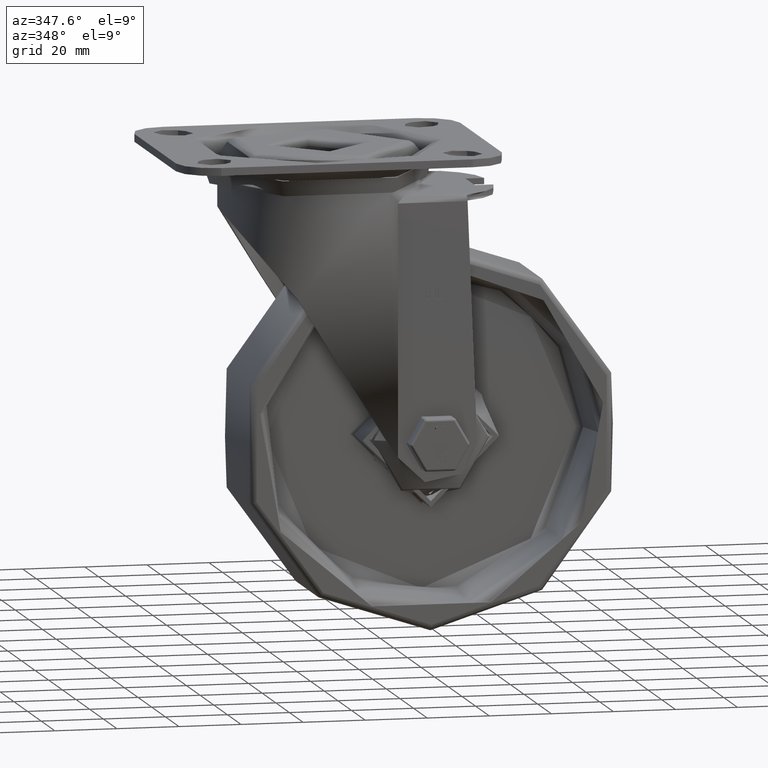
[diagram: clean part render]
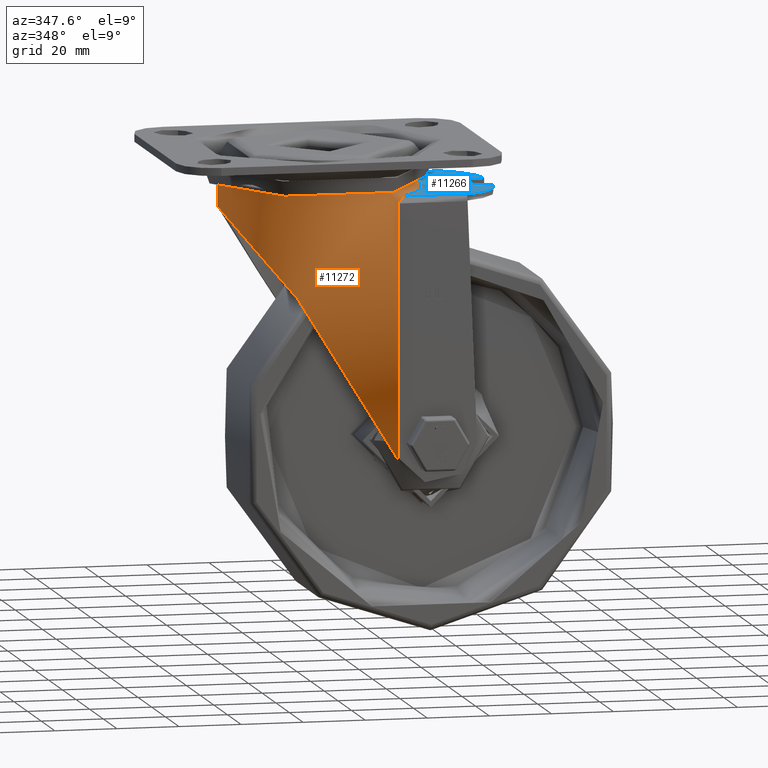
[diagram: same view with the hole feature highlighted: cylindrical wall and planar end face, labeled with their STEP entity ids]
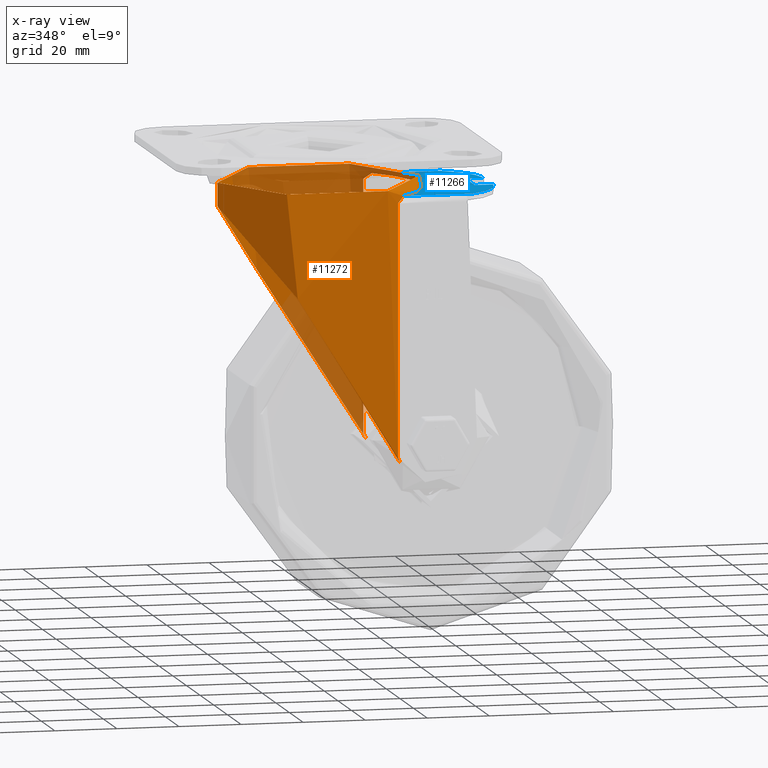
[diagram: x-ray of the same camera — body ghosted, the hole faces saturated]
A machine part, auxiliary view. The highlighted faces form one hole feature of diameter 65 mm: the cylindrical wall (entity #11272, orange) and its adjacent planar end face (entity #11266, blue) — they share a circular edge in the B-rep.
The next image is the same camera in x-ray (body ghosted, the hole faces saturated) — the bore reads through the body.
Wall:
#375=B_SPLINE_CURVE_WITH_KNOTS('',3,(#16042,#16043,#16044,#16045,#16046,
#16047,#16048,#16049,#16050,#16051,#16052,#16053),.UNSPECIFIED.,.F.,.F.,
(4,2,2,2,2,4),(0.363292483379939,0.479567659147119,0.595842834914299,0.671322742740088,
0.709062696652983,0.746802650565877),.UNSPECIFIED.);
#378=B_SPLINE_CURVE_WITH_KNOTS('',3,(#16103,#16104,#16105,#16106,#16107,
#16108,#16109,#16110,#16111,#16112,#16113,#16114),.UNSPECIFIED.,.F.,.F.,
(4,2,2,2,2,4),(0.,0.0377399539128948,0.0754799078257895,0.150959815651579,
0.267234991418759,0.383510167185939),.UNSPECIFIED.);
#379=B_SPLINE_CURVE_WITH_KNOTS('',3,(#16141,#16142,#16143,#16144,#16145,
#16146),.UNSPECIFIED.,.F.,.F.,(4,2,4),(-11.5635386951613,-11.4384785033552,
-11.355064711104),.UNSPECIFIED.);
#380=B_SPLINE_CURVE_WITH_KNOTS('',3,(#16148,#16149,#16150,#16151,#16152,
#16153,#16154,#16155,#16156,#16157,#16158,#16159,#16160,#16161,#16162,#16163,
#16164,#16165,#16166,#16167,#16168,#16169,#16170,#16171,#16172,#16173,#16174,
#16175,#16176,#16177,#16178,#16179,#16180,#16181,#16182,#16183,#16184,#16185,
#16186,#16187,#16188,#16189),.UNSPECIFIED.,.F.,.F.,(4,2,2,2,2,2,2,2,2,2,
2,2,2,2,2,2,2,2,2,2,4),(-22.9776335659443,-22.6910063540771,-20.9212503376627,
-19.1514943212483,-17.381738304834,-15.7584624783314,-14.1351866518288,
-13.658985285183,-13.1827839185373,-12.7065825518915,-12.2303811852457,
-11.7541798186,-11.2779784519542,-10.8017770853084,-10.3255757186626,-8.70229989216005,
-7.07902406565746,-5.30926804924309,-3.53951203282873,-1.76975601641436,
-1.48312880454712),.UNSPECIFIED.);
#381=B_SPLINE_CURVE_WITH_KNOTS('',3,(#16191,#16192,#16193,#16194),
 .UNSPECIFIED.,.F.,.F.,(4,4),(-10.45161608739,-10.2425703451283),
 .UNSPECIFIED.);
#1458=FACE_OUTER_BOUND('',#2173,.T.);
#2173=EDGE_LOOP('',(#7918,#7919,#7920,#7921,#7922,#7923,#7924,#7925,#7926,
#7927,#7928,#7929));
#3024=LINE('',#16136,#3766);
#3025=LINE('',#16139,#3767);
#3026=LINE('',#16195,#3768);
#3766=VECTOR('',#13383,32.5);
#3767=VECTOR('',#13386,10.);
#3768=VECTOR('',#13387,10.);
#4483=CIRCLE('',#12189,32.5);
#4484=CIRCLE('',#12190,32.5);
#4487=CIRCLE('',#12201,32.5);
#4931=VERTEX_POINT('',#16039);
#4932=VERTEX_POINT('',#16041);
#4941=VERTEX_POINT('',#16081);
#4942=VERTEX_POINT('',#16083);
#4948=VERTEX_POINT('',#16102);
#4954=VERTEX_POINT('',#16135);
#4955=VERTEX_POINT('',#16138);
#4956=VERTEX_POINT('',#16140);
#4957=VERTEX_POINT('',#16147);
#4958=VERTEX_POINT('',#16190);
#6081=EDGE_CURVE('',#4931,#4932,#375,.F.);
#6093=EDGE_CURVE('',#4941,#4932,#4483,.T.);
#6094=EDGE_CURVE('',#4942,#4941,#4484,.T.);
#6101=EDGE_CURVE('',#4942,#4948,#378,.F.);
#6112=EDGE_CURVE('',#4941,#4954,#3024,.T.);
#6113=EDGE_CURVE('',#4954,#4954,#4487,.T.);
#6114=EDGE_CURVE('',#4931,#4955,#3025,.T.);
#6115=EDGE_CURVE('',#4955,#4956,#379,.F.);
#6116=EDGE_CURVE('',#4956,#4957,#380,.T.);
#6117=EDGE_CURVE('',#4957,#4958,#381,.F.);
#6118=EDGE_CURVE('',#4958,#4948,#3026,.T.);
#7918=ORIENTED_EDGE('',*,*,#6094,.T.);
#7919=ORIENTED_EDGE('',*,*,#6112,.T.);
#7920=ORIENTED_EDGE('',*,*,#6113,.F.);
#7921=ORIENTED_EDGE('',*,*,#6112,.F.);
#7922=ORIENTED_EDGE('',*,*,#6093,.T.);
#7923=ORIENTED_EDGE('',*,*,#6081,.F.);
#7924=ORIENTED_EDGE('',*,*,#6114,.T.);
#7925=ORIENTED_EDGE('',*,*,#6115,.T.);
#7926=ORIENTED_EDGE('',*,*,#6116,.T.);
#7927=ORIENTED_EDGE('',*,*,#6117,.T.);
#7928=ORIENTED_EDGE('',*,*,#6118,.T.);
#7929=ORIENTED_EDGE('',*,*,#6101,.F.);
#11076=CYLINDRICAL_SURFACE('',#12200,32.5);
#11272=ADVANCED_FACE('',(#1458),#11076,.T.);
#12189=AXIS2_PLACEMENT_3D('',#16082,#13348,#13349);
#12190=AXIS2_PLACEMENT_3D('',#16084,#13350,#13351);
#12200=AXIS2_PLACEMENT_3D('',#16134,#13381,#13382);
#12201=AXIS2_PLACEMENT_3D('',#16137,#13384,#13385);
#13348=DIRECTION('center_axis',(0.,0.,1.));
#13349=DIRECTION('ref_axis',(-1.,0.,0.));
#13350=DIRECTION('center_axis',(0.,0.,1.));
#13351=DIRECTION('ref_axis',(-1.,0.,0.));
#13381=DIRECTION('center_axis',(6.19544098563145E-17,0.,-1.));
#13382=DIRECTION('ref_axis',(-1.,0.,-6.19544098563145E-17));
#13383=DIRECTION('',(-6.19544098563145E-17,0.,1.));
#13384=DIRECTION('center_axis',(-6.19544098563145E-17,-1.26521406394897E-48,
1.));
#13385=DIRECTION('ref_axis',(1.,1.22464679914735E-16,6.19544098563145E-17));
#13386=DIRECTION('',(6.19544098563145E-17,0.,-1.));
#13387=DIRECTION('',(-6.19544098563145E-17,0.,1.));
#16039=CARTESIAN_POINT('',(20.1494416796099,25.5,-13.5));
#16041=CARTESIAN_POINT('',(22.4499443206436,23.5,-11.5));
#16042=CARTESIAN_POINT('Ctrl Pts',(22.4499443206436,23.5,-11.5));
#16043=CARTESIAN_POINT('Ctrl Pts',(22.1696913328971,23.7677303817278,-11.5));
#16044=CARTESIAN_POINT('Ctrl Pts',(21.8611012911094,24.0520550244529,-11.5559618425306));
#16045=CARTESIAN_POINT('Ctrl Pts',(21.2642212979875,24.5813342424523,-11.7927316101142));
#16046=CARTESIAN_POINT('Ctrl Pts',(20.9758088310951,24.8266282884483,-11.9724704790573));
#16047=CARTESIAN_POINT('Ctrl Pts',(20.5823140084113,25.1527099104457,-12.3563823050487));
#16048=CARTESIAN_POINT('Ctrl Pts',(20.4300594679135,25.2761155161676,-12.5499409641475));
#16049=CARTESIAN_POINT('Ctrl Pts',(20.2672440991256,25.4065671180401,-12.8841253966812));
#16050=CARTESIAN_POINT('Ctrl Pts',(20.2236213274921,25.4412361682021,-13.0028137321869));
#16051=CARTESIAN_POINT('Ctrl Pts',(20.164719560852,25.487949202392,-13.2478516262774));
#16052=CARTESIAN_POINT('Ctrl Pts',(20.1494416796099,25.5,-13.3742001536237));
#16053=CARTESIAN_POINT('Ctrl Pts',(20.1494416796099,25.5,-13.5));
#16081=CARTESIAN_POINT('',(32.5,-3.9801020972289E-15,-11.5));
#16082=CARTESIAN_POINT('Origin',(2.78794844353415E-16,0.,-11.5));
#16083=CARTESIAN_POINT('',(22.4499443206437,-23.5,-11.5));
#16084=CARTESIAN_POINT('Origin',(2.78794844353415E-16,0.,-11.5));
#16102=CARTESIAN_POINT('',(20.1494416796099,-25.5,-13.5));
#16103=CARTESIAN_POINT('Ctrl Pts',(20.1494416796099,-25.5,-13.5));
#16104=CARTESIAN_POINT('Ctrl Pts',(20.1494416796099,-25.5,-13.3742001536237));
#16105=CARTESIAN_POINT('Ctrl Pts',(20.1647195608521,-25.4879492023919,-13.2478516262774));
#16106=CARTESIAN_POINT('Ctrl Pts',(20.2236213274921,-25.4412361682021,-13.0028137321869));
#16107=CARTESIAN_POINT('Ctrl Pts',(20.2672440991256,-25.4065671180401,-12.8841253966812));
#16108=CARTESIAN_POINT('Ctrl Pts',(20.4300594679135,-25.2761155161676,-12.5499409641475));
#16109=CARTESIAN_POINT('Ctrl Pts',(20.5823140084113,-25.1527099104456,-12.3563823050487));
#16110=CARTESIAN_POINT('Ctrl Pts',(20.9758088310951,-24.8266282884483,-11.9724704790573));
#16111=CARTESIAN_POINT('Ctrl Pts',(21.2642212979875,-24.5813342424522,-11.7927316101142));
#16112=CARTESIAN_POINT('Ctrl Pts',(21.8611012911094,-24.0520550244529,-11.5559618425306));
#16113=CARTESIAN_POINT('Ctrl Pts',(22.1696913328971,-23.7677303817278,-11.5));
#16114=CARTESIAN_POINT('Ctrl Pts',(22.4499443206437,-23.5,-11.5));
#16134=CARTESIAN_POINT('Origin',(0.,0.,-7.));
#16135=CARTESIAN_POINT('',(32.5,3.9801020972289E-15,-9.));
#16136=CARTESIAN_POINT('',(32.5,-3.9801020972289E-15,-7.));
#16137=CARTESIAN_POINT('Origin',(1.23908819712629E-16,0.,-9.));
#16138=CARTESIAN_POINT('',(20.1494416796099,25.5,-94.4842185192127));
#16139=CARTESIAN_POINT('',(20.1494416796099,25.5,-6.99999999999999));
#16140=CARTESIAN_POINT('',(21.0000000000001,24.8042335096249,-96.355667278375));
#16141=CARTESIAN_POINT('Ctrl Pts',(21.,24.8042335096249,-96.3556672783751));
#16142=CARTESIAN_POINT('Ctrl Pts',(20.8051153372195,24.9692286471204,-96.003041263857));
#16143=CARTESIAN_POINT('Ctrl Pts',(20.6234793720538,25.119064449517,-95.6359105896988));
#16144=CARTESIAN_POINT('Ctrl Pts',(20.347869285102,25.3423428488762,-95.0046184697986));
#16145=CARTESIAN_POINT('Ctrl Pts',(20.2447203953596,25.4247132185762,-94.746637785918));
#16146=CARTESIAN_POINT('Ctrl Pts',(20.1494416796099,25.5,-94.4842185192127));
#16147=CARTESIAN_POINT('',(21.0000000000001,-24.8042335096249,-96.355667278375));
#16148=CARTESIAN_POINT('Ctrl Pts',(21.,24.8042335096249,-96.3556672783751));
#16149=CARTESIAN_POINT('Ctrl Pts',(20.5612528277636,25.175689882723,-95.5617943048975));
#16150=CARTESIAN_POINT('Ctrl Pts',(20.1160549818823,25.5326397813991,-94.760779439075));
#16151=CARTESIAN_POINT('Ctrl Pts',(16.8780016174788,27.9934630697207,-88.96872405177));
#16152=CARTESIAN_POINT('Ctrl Pts',(13.8597192896246,29.5878251872788,-83.7514535686536));
#16153=CARTESIAN_POINT('Ctrl Pts',(7.51603960714765,31.7968384644217,-73.2048476290399));
#16154=CARTESIAN_POINT('Ctrl Pts',(4.1959028460844,32.4029780686629,-67.8848537597946));
#16155=CARTESIAN_POINT('Ctrl Pts',(-2.52753025266005,32.5756071182239,-57.4994256209909));
#16156=CARTESIAN_POINT('Ctrl Pts',(-5.93073732133008,32.1409709511482,-52.4339148801105));
#16157=CARTESIAN_POINT('Ctrl Pts',(-12.2886122447887,30.2540390559032,-43.2722875439018));
#16158=CARTESIAN_POINT('Ctrl Pts',(-15.6324638343359,28.7598688690579,-38.6001519130437));
#16159=CARTESIAN_POINT('Ctrl Pts',(-22.0013225797732,24.2372831311902,-29.9714756555257));
#16160=CARTESIAN_POINT('Ctrl Pts',(-25.0243636352979,21.2098776986056,-26.0129546601165));
#16161=CARTESIAN_POINT('Ctrl Pts',(-28.1172059885266,16.3517301735302,-22.0369850693664));
#16162=CARTESIAN_POINT('Ctrl Pts',(-28.8046629413859,15.1231775884907,-21.1591224829775));
#16163=CARTESIAN_POINT('Ctrl Pts',(-30.0544518640702,12.4558833875132,-19.5715525586215));
#16164=CARTESIAN_POINT('Ctrl Pts',(-30.6164658364185,11.0168317682944,-18.8621157648538));
#16165=CARTESIAN_POINT('Ctrl Pts',(-31.5395229981473,7.99982019775488,-17.7008910339993));
#16166=CARTESIAN_POINT('Ctrl Pts',(-31.9010725981144,6.41865886805036,-17.2483313859825));
#16167=CARTESIAN_POINT('Ctrl Pts',(-32.3814408167135,3.21246095637671,-16.6477587400856));
#16168=CARTESIAN_POINT('Ctrl Pts',(-32.5,1.58733788881923,-16.5000000000001));
#16169=CARTESIAN_POINT('Ctrl Pts',(-32.5,-1.58733788881923,-16.5000000000001));
#16170=CARTESIAN_POINT('Ctrl Pts',(-32.3814408167135,-3.21246095637671,
-16.6477587400856));
#16171=CARTESIAN_POINT('Ctrl Pts',(-31.9010725981144,-6.41865886805036,
-17.2483313859825));
#16172=CARTESIAN_POINT('Ctrl Pts',(-31.5395229981473,-7.99982019775488,
-17.7008910339993));
#16173=CARTESIAN_POINT('Ctrl Pts',(-30.6164658364185,-11.0168317682944,
-18.8621157648538));
#16174=CARTESIAN_POINT('Ctrl Pts',(-30.0544518640702,-12.4558833875132,
-19.5715525586215));
#16175=CARTESIAN_POINT('Ctrl Pts',(-28.8046629413859,-15.1231775884907,
-21.1591224829775));
#16176=CARTESIAN_POINT('Ctrl Pts',(-28.1172059885266,-16.3517301735302,
-22.0369850693664));
#16177=CARTESIAN_POINT('Ctrl Pts',(-25.0243636352979,-21.2098776986056,
-26.0129546601165));
#16178=CARTESIAN_POINT('Ctrl Pts',(-22.0013225797732,-24.2372831311902,
-29.9714756555258));
#16179=CARTESIAN_POINT('Ctrl Pts',(-15.6324638343359,-28.7598688690579,
-38.6001519130437));
#16180=CARTESIAN_POINT('Ctrl Pts',(-12.2886122447887,-30.2540390559032,
-43.2722875439018));
#16181=CARTESIAN_POINT('Ctrl Pts',(-5.93073732133008,-32.1409709511482,
-52.4339148801105));
#16182=CARTESIAN_POINT('Ctrl Pts',(-2.52753025266005,-32.5756071182239,
-57.4994256209909));
#16183=CARTESIAN_POINT('Ctrl Pts',(4.1959028460844,-32.4029780686629,-67.8848537597946));
#16184=CARTESIAN_POINT('Ctrl Pts',(7.51603960714772,-31.7968384644217,-73.2048476290398));
#16185=CARTESIAN_POINT('Ctrl Pts',(13.8597192896247,-29.5878251872788,-83.7514535686536));
#16186=CARTESIAN_POINT('Ctrl Pts',(16.8780016174788,-27.9934630697207,-88.9687240517701));
#16187=CARTESIAN_POINT('Ctrl Pts',(20.1160549818823,-25.5326397813991,-94.7607794390751));
#16188=CARTESIAN_POINT('Ctrl Pts',(20.5612528277637,-25.175689882723,-95.5617943048975));
#16189=CARTESIAN_POINT('Ctrl Pts',(21.,-24.8042335096249,-96.3556672783751));
#16190=CARTESIAN_POINT('',(20.1494416796173,-25.4999999999948,-94.4842185192526));
#16191=CARTESIAN_POINT('Ctrl Pts',(20.149441679623,-25.4999999999896,-94.484218519249));
#16192=CARTESIAN_POINT('Ctrl Pts',(20.3877226631486,-25.3117165183851,-95.1404985758602));
#16193=CARTESIAN_POINT('Ctrl Pts',(20.6742345148235,-25.0800362344321,-95.7662243583096));
#16194=CARTESIAN_POINT('Ctrl Pts',(21.,-24.8042335096249,-96.3556672783751));
#16195=CARTESIAN_POINT('',(20.1494416796099,-25.5,-6.99999999999999));
End face:
#1122=PLANE('',#12188);
#1452=FACE_OUTER_BOUND('',#2167,.T.);
#2167=EDGE_LOOP('',(#7887,#7888,#7889,#7890,#7891,#7892,#7893,#7894,#7895));
#3007=LINE('',#16055,#3749);
#3013=LINE('',#16086,#3755);
#3014=LINE('',#16090,#3756);
#3015=LINE('',#16092,#3757);
#3016=LINE('',#16093,#3758);
#3749=VECTOR('',#13328,10.);
#3755=VECTOR('',#13352,10.);
#3756=VECTOR('',#13355,10.);
#3757=VECTOR('',#13356,10.);
#3758=VECTOR('',#13357,10.);
#4481=CIRCLE('',#12186,20.6922235914258);
#4483=CIRCLE('',#12189,32.5);
#4484=CIRCLE('',#12190,32.5);
#4485=CIRCLE('',#12191,20.6922235914258);
#4932=VERTEX_POINT('',#16041);
#4933=VERTEX_POINT('',#16054);
#4939=VERTEX_POINT('',#16075);
#4941=VERTEX_POINT('',#16081);
#4942=VERTEX_POINT('',#16083);
#4943=VERTEX_POINT('',#16085);
#4944=VERTEX_POINT('',#16087);
#4945=VERTEX_POINT('',#16089);
#4946=VERTEX_POINT('',#16091);
#6082=EDGE_CURVE('',#4932,#4933,#3007,.T.);
#6090=EDGE_CURVE('',#4939,#4933,#4481,.T.);
#6093=EDGE_CURVE('',#4941,#4932,#4483,.T.);
#6094=EDGE_CURVE('',#4942,#4941,#4484,.T.);
#6095=EDGE_CURVE('',#4943,#4942,#3013,.T.);
#6096=EDGE_CURVE('',#4943,#4944,#4485,.T.);
#6097=EDGE_CURVE('',#4945,#4944,#3014,.T.);
#6098=EDGE_CURVE('',#4945,#4946,#3015,.T.);
#6099=EDGE_CURVE('',#4946,#4939,#3016,.T.);
#7887=ORIENTED_EDGE('',*,*,#6082,.F.);
#7888=ORIENTED_EDGE('',*,*,#6093,.F.);
#7889=ORIENTED_EDGE('',*,*,#6094,.F.);
#7890=ORIENTED_EDGE('',*,*,#6095,.F.);
#7891=ORIENTED_EDGE('',*,*,#6096,.T.);
#7892=ORIENTED_EDGE('',*,*,#6097,.F.);
#7893=ORIENTED_EDGE('',*,*,#6098,.T.);
#7894=ORIENTED_EDGE('',*,*,#6099,.T.);
#7895=ORIENTED_EDGE('',*,*,#6090,.T.);
#11266=ADVANCED_FACE('',(#1452),#1122,.T.);
#12186=AXIS2_PLACEMENT_3D('',#16076,#13341,#13342);
#12188=AXIS2_PLACEMENT_3D('',#16080,#13346,#13347);
#12189=AXIS2_PLACEMENT_3D('',#16082,#13348,#13349);
#12190=AXIS2_PLACEMENT_3D('',#16084,#13350,#13351);
#12191=AXIS2_PLACEMENT_3D('',#16088,#13353,#13354);
#13328=DIRECTION('',(1.,-1.64072289318711E-16,0.));
#13341=DIRECTION('center_axis',(0.,0.,1.));
#13342=DIRECTION('ref_axis',(0.998120118345828,0.0612880849212211,0.));
#13346=DIRECTION('center_axis',(0.,0.,1.));
#13347=DIRECTION('ref_axis',(1.,0.,0.));
#13348=DIRECTION('center_axis',(0.,0.,1.));
#13349=DIRECTION('ref_axis',(-1.,0.,0.));
#13350=DIRECTION('center_axis',(0.,0.,1.));
#13351=DIRECTION('ref_axis',(-1.,0.,0.));
#13352=DIRECTION('',(-1.,4.92216867956133E-16,0.));
#13353=DIRECTION('center_axis',(0.,0.,1.));
#13354=DIRECTION('ref_axis',(0.394028404164686,-0.919098262816023,0.));
#13355=DIRECTION('',(1.,0.,0.));
#13356=DIRECTION('',(0.,1.,0.));
#13357=DIRECTION('',(1.,0.,0.));
#16041=CARTESIAN_POINT('',(22.4499443206436,23.5,-11.5));
#16054=CARTESIAN_POINT('',(44.5208131333194,23.5,-11.5));
#16055=CARTESIAN_POINT('',(15.9635391260157,23.5,-11.5));
#16075=CARTESIAN_POINT('',(55.0000008195639,6.75000000000001,-11.5));
#16076=CARTESIAN_POINT('Origin',(34.3466761596516,5.4818132433198,-11.5));
#16080=CARTESIAN_POINT('Origin',(0.,0.,-11.5));
#16081=CARTESIAN_POINT('',(32.5,-3.9801020972289E-15,-11.5));
#16082=CARTESIAN_POINT('Origin',(2.78794844353415E-16,0.,-11.5));
#16083=CARTESIAN_POINT('',(22.4499443206437,-23.5,-11.5));
#16084=CARTESIAN_POINT('Origin',(2.78794844353415E-16,0.,-11.5));
#16085=CARTESIAN_POINT('',(44.5208131333193,-23.5,-11.5));
#16086=CARTESIAN_POINT('',(15.9635391260156,-23.5,-11.5));
#16087=CARTESIAN_POINT('',(55.0000008195639,-6.75,-11.5));
#16088=CARTESIAN_POINT('Origin',(34.3466761596516,-5.48181324331979,-11.5));
#16089=CARTESIAN_POINT('',(49.,-6.75,-11.5));
#16090=CARTESIAN_POINT('',(49.,-6.75,-11.5));
#16091=CARTESIAN_POINT('',(49.,6.75000000000001,-11.5));
#16092=CARTESIAN_POINT('',(49.,3.9801020972289E-15,-11.5));
#16093=CARTESIAN_POINT('',(49.,6.75000000000001,-11.5));